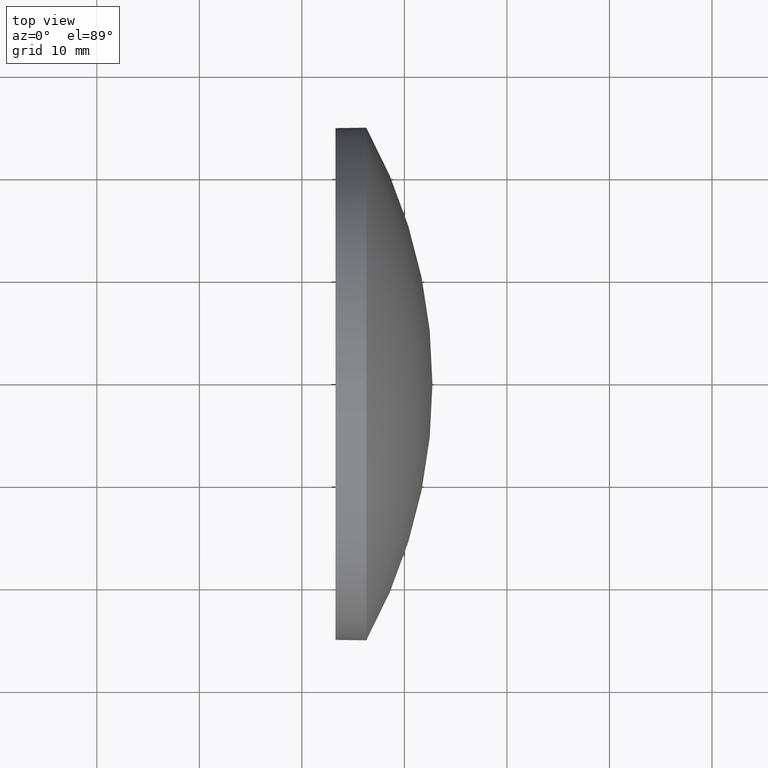
[diagram: clean part render]
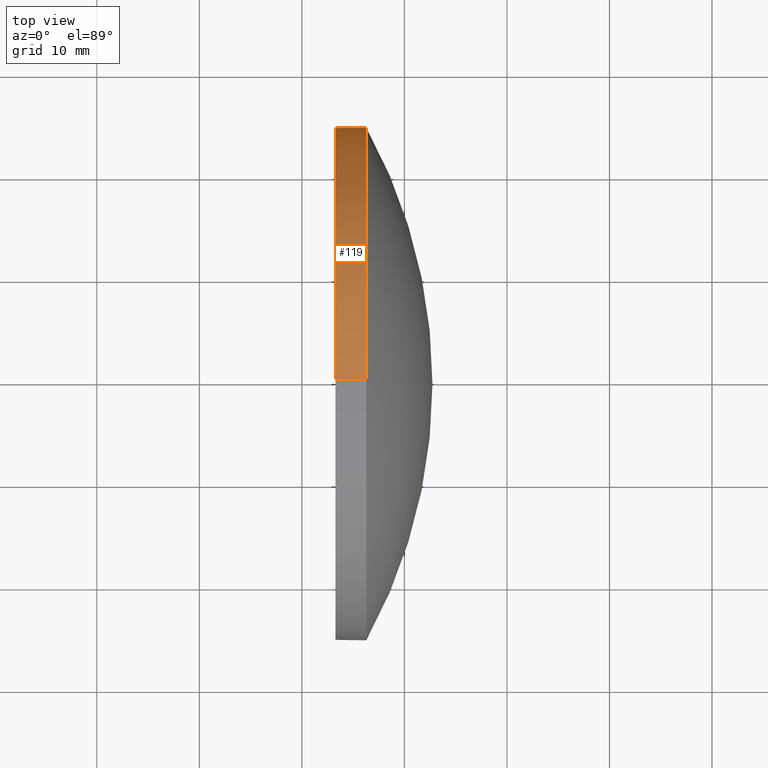
[diagram: same view with one face highlighted and labeled with its STEP entity id]
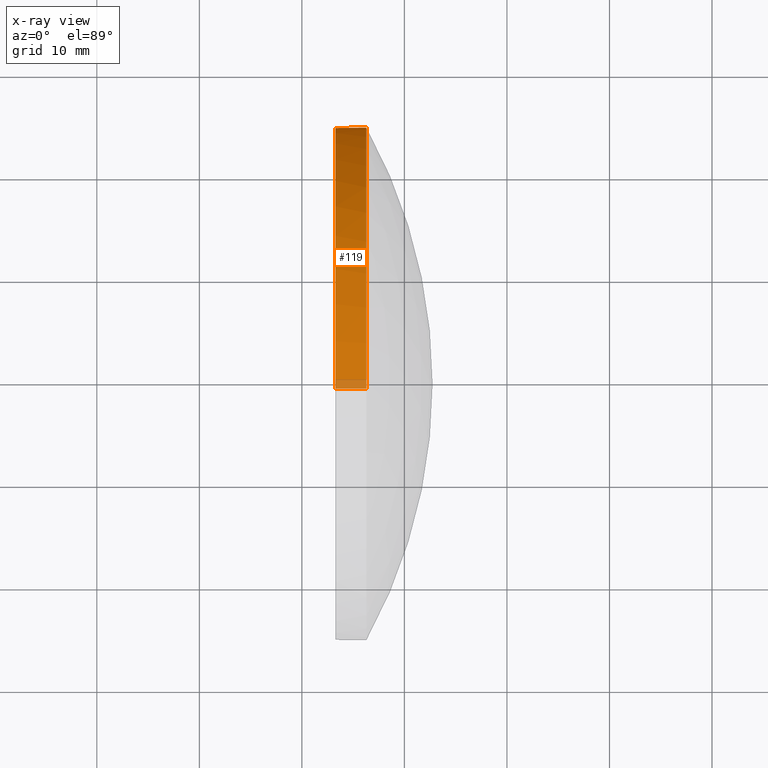
[diagram: x-ray of the same camera — body ghosted, the highlighted face saturated]
A machine part, top view. The second image highlights one B-rep face of the part: STEP entity #119.
The next image is the same camera in x-ray: the body ghosted, the highlighted face saturated — about 3% of this face is hidden behind the body in this view.
In plain terms, the highlighted cylindrical surface (partial cylindrical patch) has radius 25 mm, axis along (-1, -0, -0).
Its self-contained STEP definition (entity closure, byte-faithful):
#2 = VERTEX_POINT ( 'NONE', #103 ) ;
#3 = CARTESIAN_POINT ( 'NONE',  ( 339.3126948403255500, 9.632589185674763900, -24.99999999999999600 ) ) ;
#6 = DIRECTION ( 'NONE',  ( -1.000000000000000000, -0.0000000000000000000, -0.0000000000000000000 ) ) ;
#10 = CARTESIAN_POINT ( 'NONE',  ( 346.2844701294416200, 9.632589185674760300, 0.0000000000000000000 ) ) ;
#11 = CIRCLE ( 'NONE', #175, 24.99999999999999600 ) ;
#12 = EDGE_CURVE ( 'NONE', #139, #2, #169, .T. ) ;
#13 = ORIENTED_EDGE ( 'NONE', *, *, #173, .F. ) ;
#14 = EDGE_CURVE ( 'NONE', #133, #69, #11, .T. ) ;
#17 = DIRECTION ( 'NONE',  ( 0.0000000000000000000, 0.0000000000000000000, 1.000000000000000000 ) ) ;
#18 = EDGE_CURVE ( 'NONE', #70, #2, #54, .T. ) ;
#21 = AXIS2_PLACEMENT_3D ( 'NONE', #10, #79, #155 ) ;
#22 = CYLINDRICAL_SURFACE ( 'NONE', #121, 24.99999999999999600 ) ;
#23 = FACE_OUTER_BOUND ( 'NONE', #137, .T. ) ;
#26 = DIRECTION ( 'NONE',  ( -1.000000000000000000, -0.0000000000000000000, -0.0000000000000000000 ) ) ;
#28 = DIRECTION ( 'NONE',  ( 0.0000000000000000000, 0.0000000000000000000, 1.000000000000000000 ) ) ;
#34 = VECTOR ( 'NONE', #6, 1000.000000000000000 ) ;
#39 = ORIENTED_EDGE ( 'NONE', *, *, #18, .T. ) ;
#41 = AXIS2_PLACEMENT_3D ( 'NONE', #124, #152, #142 ) ;
#42 = VECTOR ( 'NONE', #26, 1000.000000000000000 ) ;
#43 = CARTESIAN_POINT ( 'NONE',  ( 343.2844701294416200, 9.632589185674760300, 24.99999999999999600 ) ) ;
#45 = CARTESIAN_POINT ( 'NONE',  ( 346.2844701294416200, 9.632589185674763900, -24.99999999999999600 ) ) ;
#47 = CARTESIAN_POINT ( 'NONE',  ( 339.3126948403255500, 9.632589185674760300, 0.0000000000000000000 ) ) ;
#54 = LINE ( 'NONE', #3, #42 ) ;
#61 = DIRECTION ( 'NONE',  ( -1.000000000000000000, -0.0000000000000000000, -0.0000000000000000000 ) ) ;
#64 = CIRCLE ( 'NONE', #21, 24.99999999999999600 ) ;
#69 = VERTEX_POINT ( 'NONE', #126 ) ;
#70 = VERTEX_POINT ( 'NONE', #45 ) ;
#79 = DIRECTION ( 'NONE',  ( -1.000000000000000000, -0.0000000000000000000, -0.0000000000000000000 ) ) ;
#83 = CARTESIAN_POINT ( 'NONE',  ( 339.3126948403255500, 9.632589185674760300, 24.99999999999999600 ) ) ;
#88 = LINE ( 'NONE', #83, #34 ) ;
#91 = CARTESIAN_POINT ( 'NONE',  ( 346.2844701294416200, 9.632589185674760300, 0.0000000000000000000 ) ) ;
#103 = CARTESIAN_POINT ( 'NONE',  ( 343.2844701294416200, 9.632589185674763900, -24.99999999999999600 ) ) ;
#119 = ADVANCED_FACE ( 'NONE', ( #23 ), #22, .T. ) ;
#121 = AXIS2_PLACEMENT_3D ( 'NONE', #47, #143, #28 ) ;
#122 = ORIENTED_EDGE ( 'NONE', *, *, #12, .F. ) ;
#124 = CARTESIAN_POINT ( 'NONE',  ( 343.2844701294416200, 9.632589185674760300, 0.0000000000000000000 ) ) ;
#126 = CARTESIAN_POINT ( 'NONE',  ( 346.2844701294416200, 34.63258918567477500, 0.0000000000000000000 ) ) ;
#128 = CARTESIAN_POINT ( 'NONE',  ( 346.2844701294416200, 9.632589185674760300, 24.99999999999999600 ) ) ;
#133 = VERTEX_POINT ( 'NONE', #128 ) ;
#137 = EDGE_LOOP ( 'NONE', ( #166, #39, #122, #13, #151 ) ) ;
#139 = VERTEX_POINT ( 'NONE', #43 ) ;
#142 = DIRECTION ( 'NONE',  ( 0.0000000000000000000, 0.0000000000000000000, 1.000000000000000000 ) ) ;
#143 = DIRECTION ( 'NONE',  ( -1.000000000000000000, -0.0000000000000000000, -0.0000000000000000000 ) ) ;
#151 = ORIENTED_EDGE ( 'NONE', *, *, #14, .T. ) ;
#152 = DIRECTION ( 'NONE',  ( -1.000000000000000000, -0.0000000000000000000, -0.0000000000000000000 ) ) ;
#155 = DIRECTION ( 'NONE',  ( 0.0000000000000000000, 0.0000000000000000000, 1.000000000000000000 ) ) ;
#161 = EDGE_CURVE ( 'NONE', #69, #70, #64, .T. ) ;
#166 = ORIENTED_EDGE ( 'NONE', *, *, #161, .T. ) ;
#169 = CIRCLE ( 'NONE', #41, 24.99999999999999600 ) ;
#173 = EDGE_CURVE ( 'NONE', #133, #139, #88, .T. ) ;
#175 = AXIS2_PLACEMENT_3D ( 'NONE', #91, #61, #17 ) ;